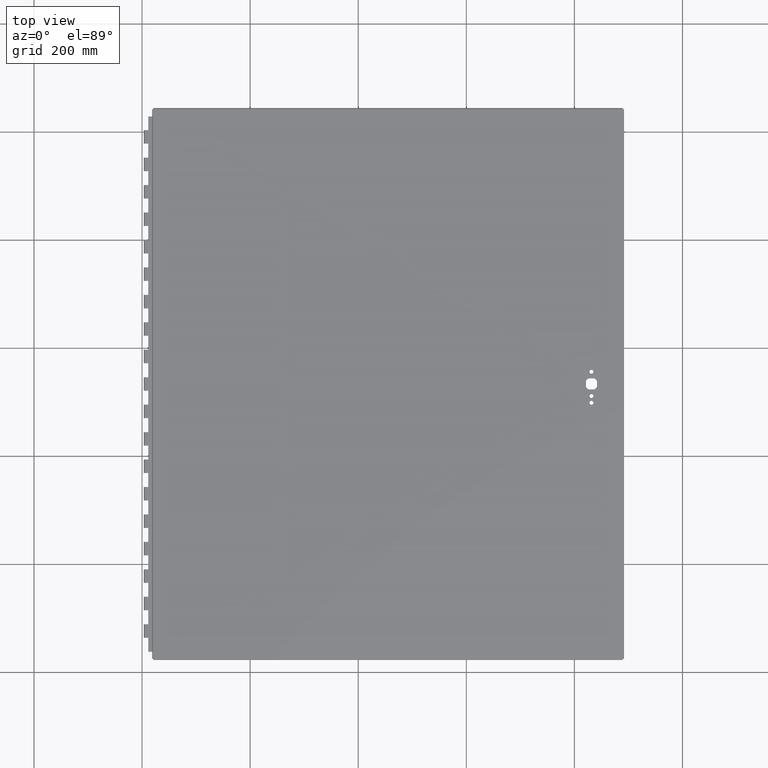
[diagram: clean part render]
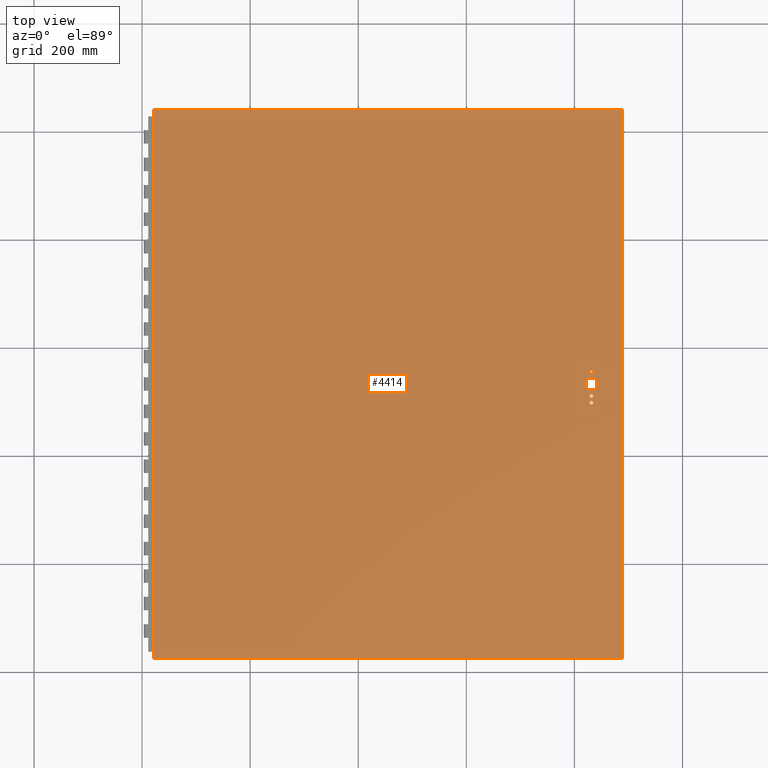
[diagram: same view with one face highlighted and labeled with its STEP entity id]
A machine part, top view. The second image highlights one B-rep face of the part: STEP entity #4414.
In plain terms, the highlighted planar face has unit normal (-0, 0, -1).
Its self-contained STEP definition (entity closure, byte-faithful):
#313=FACE_BOUND('',#828,.T.);
#314=FACE_BOUND('',#829,.T.);
#315=FACE_BOUND('',#830,.T.);
#316=FACE_BOUND('',#831,.T.);
#425=PLANE('',#4728);
#594=FACE_OUTER_BOUND('',#827,.T.);
#827=EDGE_LOOP('',(#3373,#3374,#3375,#3376));
#828=EDGE_LOOP('',(#3377,#3378,#3379,#3380,#3381,#3382,#3383,#3384));
#829=EDGE_LOOP('',(#3385));
#830=EDGE_LOOP('',(#3386));
#831=EDGE_LOOP('',(#3387));
#1000=LINE('',#6274,#1456);
#1004=LINE('',#6286,#1460);
#1008=LINE('',#6298,#1464);
#1012=LINE('',#6308,#1468);
#1037=LINE('',#6481,#1493);
#1050=LINE('',#6616,#1506);
#1068=LINE('',#6785,#1524);
#1072=LINE('',#6820,#1528);
#1456=VECTOR('',#5083,0.393700787401575);
#1460=VECTOR('',#5095,0.393700787401575);
#1464=VECTOR('',#5107,0.393700787401575);
#1468=VECTOR('',#5119,0.393700787401575);
#1493=VECTOR('',#5176,0.393700787401575);
#1506=VECTOR('',#5199,0.393700787401575);
#1524=VECTOR('',#5233,0.393700787401575);
#1528=VECTOR('',#5243,0.393700787401575);
#1922=CIRCLE('',#4672,0.453);
#1924=CIRCLE('',#4676,0.453);
#1926=CIRCLE('',#4680,0.453);
#1928=CIRCLE('',#4684,0.453);
#1929=CIRCLE('',#4687,0.1405);
#1931=CIRCLE('',#4690,0.1405);
#1933=CIRCLE('',#4693,0.1405);
#2068=VERTEX_POINT('',#6265);
#2069=VERTEX_POINT('',#6267);
#2071=VERTEX_POINT('',#6273);
#2073=VERTEX_POINT('',#6279);
#2075=VERTEX_POINT('',#6285);
#2077=VERTEX_POINT('',#6291);
#2079=VERTEX_POINT('',#6297);
#2081=VERTEX_POINT('',#6303);
#2082=VERTEX_POINT('',#6310);
#2084=VERTEX_POINT('',#6316);
#2086=VERTEX_POINT('',#6322);
#2111=VERTEX_POINT('',#6472);
#2112=VERTEX_POINT('',#6480);
#2116=VERTEX_POINT('',#6552);
#2122=VERTEX_POINT('',#6608);
#2481=EDGE_CURVE('',#2069,#2068,#1922,.T.);
#2484=EDGE_CURVE('',#2071,#2069,#1000,.T.);
#2487=EDGE_CURVE('',#2073,#2071,#1924,.T.);
#2490=EDGE_CURVE('',#2075,#2073,#1004,.T.);
#2493=EDGE_CURVE('',#2077,#2075,#1926,.T.);
#2496=EDGE_CURVE('',#2079,#2077,#1008,.T.);
#2499=EDGE_CURVE('',#2081,#2079,#1928,.T.);
#2502=EDGE_CURVE('',#2068,#2081,#1012,.T.);
#2503=EDGE_CURVE('',#2082,#2082,#1929,.T.);
#2506=EDGE_CURVE('',#2084,#2084,#1931,.T.);
#2509=EDGE_CURVE('',#2086,#2086,#1933,.T.);
#2542=EDGE_CURVE('',#2112,#2111,#1037,.T.);
#2562=EDGE_CURVE('',#2116,#2122,#1050,.T.);
#2587=EDGE_CURVE('',#2111,#2116,#1068,.T.);
#2592=EDGE_CURVE('',#2122,#2112,#1072,.T.);
#3373=ORIENTED_EDGE('',*,*,#2587,.T.);
#3374=ORIENTED_EDGE('',*,*,#2562,.T.);
#3375=ORIENTED_EDGE('',*,*,#2592,.T.);
#3376=ORIENTED_EDGE('',*,*,#2542,.T.);
#3377=ORIENTED_EDGE('',*,*,#2481,.T.);
#3378=ORIENTED_EDGE('',*,*,#2502,.T.);
#3379=ORIENTED_EDGE('',*,*,#2499,.T.);
#3380=ORIENTED_EDGE('',*,*,#2496,.T.);
#3381=ORIENTED_EDGE('',*,*,#2493,.T.);
#3382=ORIENTED_EDGE('',*,*,#2490,.T.);
#3383=ORIENTED_EDGE('',*,*,#2487,.T.);
#3384=ORIENTED_EDGE('',*,*,#2484,.T.);
#3385=ORIENTED_EDGE('',*,*,#2503,.T.);
#3386=ORIENTED_EDGE('',*,*,#2506,.T.);
#3387=ORIENTED_EDGE('',*,*,#2509,.T.);
#4414=ADVANCED_FACE('',(#594,#313,#314,#315,#316),#425,.F.);
#4672=AXIS2_PLACEMENT_3D('',#6268,#5077,#5078);
#4676=AXIS2_PLACEMENT_3D('',#6280,#5089,#5090);
#4680=AXIS2_PLACEMENT_3D('',#6292,#5101,#5102);
#4684=AXIS2_PLACEMENT_3D('',#6304,#5113,#5114);
#4687=AXIS2_PLACEMENT_3D('',#6311,#5122,#5123);
#4690=AXIS2_PLACEMENT_3D('',#6317,#5129,#5130);
#4693=AXIS2_PLACEMENT_3D('',#6323,#5136,#5137);
#4728=AXIS2_PLACEMENT_3D('',#6923,#5279,#5280);
#5077=DIRECTION('center_axis',(0.,0.,1.));
#5078=DIRECTION('ref_axis',(-0.469368833158312,-0.883002207505511,0.));
#5083=DIRECTION('',(0.,1.,0.));
#5089=DIRECTION('center_axis',(0.,0.,1.));
#5090=DIRECTION('ref_axis',(-0.883002207505523,0.469368833158287,0.));
#5095=DIRECTION('',(1.,4.11144096252608E-16,0.));
#5101=DIRECTION('center_axis',(0.,0.,1.));
#5102=DIRECTION('ref_axis',(0.469368833158287,0.883002207505524,0.));
#5107=DIRECTION('',(0.,-1.,0.));
#5113=DIRECTION('center_axis',(0.,0.,1.));
#5114=DIRECTION('ref_axis',(0.883002207505515,-0.469368833158303,0.));
#5119=DIRECTION('',(-1.,0.,0.));
#5122=DIRECTION('center_axis',(0.,0.,1.));
#5123=DIRECTION('ref_axis',(1.,0.,0.));
#5129=DIRECTION('center_axis',(0.,0.,1.));
#5130=DIRECTION('ref_axis',(1.,0.,0.));
#5136=DIRECTION('center_axis',(0.,0.,1.));
#5137=DIRECTION('ref_axis',(1.,0.,0.));
#5176=DIRECTION('',(-1.,-8.16292020079576E-17,0.));
#5199=DIRECTION('',(1.,0.,0.));
#5233=DIRECTION('',(-1.39951089151873E-16,1.,0.));
#5243=DIRECTION('',(0.,-1.,0.));
#5279=DIRECTION('center_axis',(0.,0.,1.));
#5280=DIRECTION('ref_axis',(1.,0.,0.));
#6265=CARTESIAN_POINT('',(15.0251240814207,0.400000000000005,0.));
#6267=CARTESIAN_POINT('',(15.2125,0.212624081420713,0.));
#6268=CARTESIAN_POINT('Origin',(14.8125,8.39223703653662E-15,0.));
#6273=CARTESIAN_POINT('',(15.2125,-0.212624081420696,0.));
#6274=CARTESIAN_POINT('',(15.2125,0.106312040710358,0.));
#6279=CARTESIAN_POINT('',(15.0251240814207,-0.399999999999994,0.));
#6280=CARTESIAN_POINT('Origin',(14.8125,8.39223703653662E-15,0.));
#6285=CARTESIAN_POINT('',(14.5998759185793,-0.399999999999994,0.));
#6286=CARTESIAN_POINT('',(7.51256204071035,-0.399999999999997,0.));
#6291=CARTESIAN_POINT('',(14.4125,-0.212624081420704,0.));
#6292=CARTESIAN_POINT('Origin',(14.8125,8.39223703653662E-15,0.));
#6297=CARTESIAN_POINT('',(14.4125,0.21262408142072,0.));
#6298=CARTESIAN_POINT('',(14.4125,-0.106312040710351,0.));
#6303=CARTESIAN_POINT('',(14.5998759185793,0.400000000000005,0.));
#6304=CARTESIAN_POINT('Origin',(14.8125,8.39223703653662E-15,0.));
#6308=CARTESIAN_POINT('',(7.29993795928964,0.400000000000005,0.));
#6310=CARTESIAN_POINT('',(14.672,0.886000000000008,0.));
#6311=CARTESIAN_POINT('Origin',(14.8125,0.886000000000008,0.));
#6316=CARTESIAN_POINT('',(14.672,1.37800000000001,0.));
#6317=CARTESIAN_POINT('Origin',(14.8125,1.37800000000001,0.));
#6322=CARTESIAN_POINT('',(14.672,-0.884999999999992,0.));
#6323=CARTESIAN_POINT('Origin',(14.8125,-0.884999999999992,0.));
#6472=CARTESIAN_POINT('',(-17.08225,-19.9885,-3.27821759239712E-17));
#6480=CARTESIAN_POINT('',(17.08225,-19.9885,-3.27821759239712E-17));
#6481=CARTESIAN_POINT('',(8.541125,-19.9885,0.));
#6552=CARTESIAN_POINT('',(-17.08225,19.9885,-3.27821759239712E-17));
#6608=CARTESIAN_POINT('',(17.08225,19.9885,-3.27821759239712E-17));
#6616=CARTESIAN_POINT('',(-8.59375,19.9885,0.));
#6785=CARTESIAN_POINT('',(-17.08225,-9.99425,0.));
#6820=CARTESIAN_POINT('',(17.08225,9.99425,0.));
#6923=CARTESIAN_POINT('Origin',(-2.09805925913415E-15,2.09805925913415E-15,
0.));